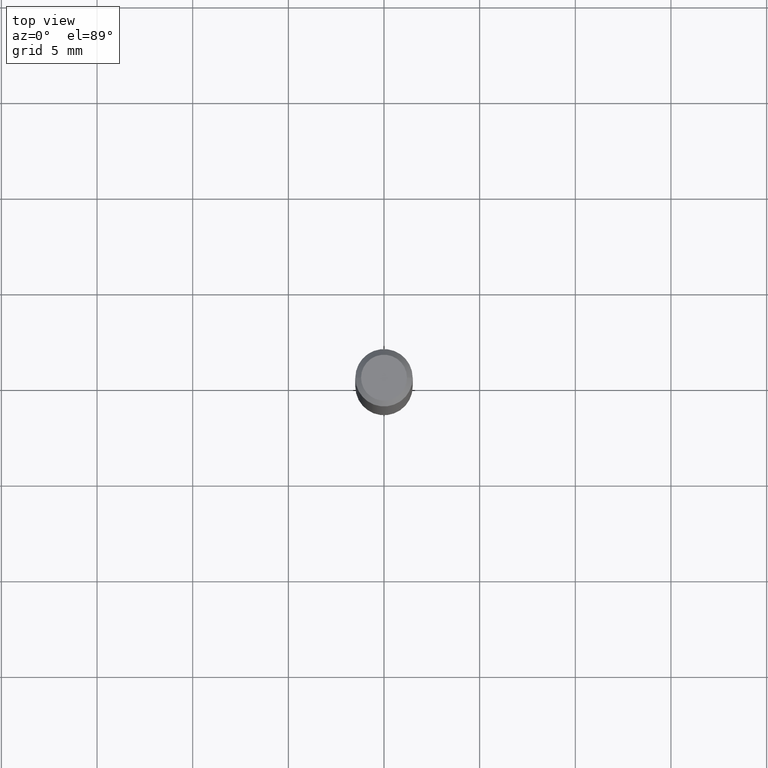
[diagram: clean part render]
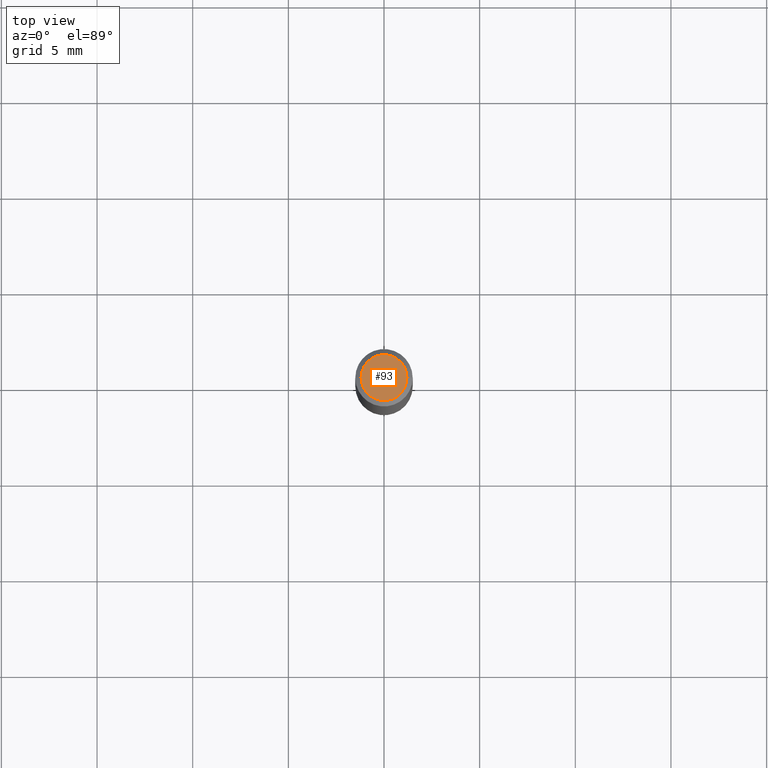
[diagram: same view with one face highlighted and labeled with its STEP entity id]
A machine part, top view. The second image highlights one B-rep face of the part: STEP entity #93.
In plain terms, the highlighted planar face has unit normal (0, -0, -1).
Its self-contained STEP definition (entity closure, byte-faithful):
#4 = DIRECTION ( 'NONE',  ( -2.445468806185136597E-29, 3.491481338843145583E-15, 1.000000000000000000 ) ) ;
#14 = AXIS2_PLACEMENT_3D ( 'NONE', #274, #4, #426 ) ;
#36 = AXIS2_PLACEMENT_3D ( 'NONE', #333, #79, #226 ) ;
#45 = CARTESIAN_POINT ( 'NONE',  ( 8.265746106709734507E-48, -1.180129479067563789E-33, -3.380025165646692144E-19 ) ) ;
#76 = CARTESIAN_POINT ( 'NONE',  ( 0.04724000000000000421, -3.852183633974369345E-16, -3.380025165621689721E-19 ) ) ;
#79 = DIRECTION ( 'NONE',  ( 2.438088387897960049E-29, -3.491481338843145188E-15, -1.000000000000000000 ) ) ;
#93 = ADVANCED_FACE ( 'NONE', ( #101 ), #111, .F. ) ;
#95 = CIRCLE ( 'NONE', #14, 0.04724000000000000421 ) ;
#101 = FACE_OUTER_BOUND ( 'NONE', #341, .T. ) ;
#103 = EDGE_CURVE ( 'NONE', #167, #283, #168, .T. ) ;
#111 = PLANE ( 'NONE',  #36 ) ;
#126 = EDGE_CURVE ( 'NONE', #283, #167, #95, .T. ) ;
#137 = DIRECTION ( 'NONE',  ( 1.000000000000000000, -6.982962677686266711E-15, 4.876185090822587894E-29 ) ) ;
#167 = VERTEX_POINT ( 'NONE', #76 ) ;
#168 = CIRCLE ( 'NONE', #417, 0.04724000000000000421 ) ;
#226 = DIRECTION ( 'NONE',  ( -1.000000000000000000, 6.982962677686265922E-15, -4.876176775795935793E-29 ) ) ;
#270 = CARTESIAN_POINT ( 'NONE',  ( -0.04724000000000000421, 3.504923541997677355E-16, -3.380025165670481712E-19 ) ) ;
#274 = CARTESIAN_POINT ( 'NONE',  ( 8.265746106709734507E-48, -1.180129479067563789E-33, -3.380025165646692144E-19 ) ) ;
#283 = VERTEX_POINT ( 'NONE', #270 ) ;
#333 = CARTESIAN_POINT ( 'NONE',  ( 4.132873053354867254E-48, -5.900647395337818946E-34, -1.690012582823346072E-19 ) ) ;
#341 = EDGE_LOOP ( 'NONE', ( #430, #358 ) ) ;
#358 = ORIENTED_EDGE ( 'NONE', *, *, #103, .T. ) ;
#417 = AXIS2_PLACEMENT_3D ( 'NONE', #45, #448, #137 ) ;
#426 = DIRECTION ( 'NONE',  ( 1.000000000000000000, -6.982962677686266711E-15, 4.876185090822587894E-29 ) ) ;
#430 = ORIENTED_EDGE ( 'NONE', *, *, #126, .T. ) ;
#448 = DIRECTION ( 'NONE',  ( -2.445468806185136597E-29, 3.491481338843145583E-15, 1.000000000000000000 ) ) ;